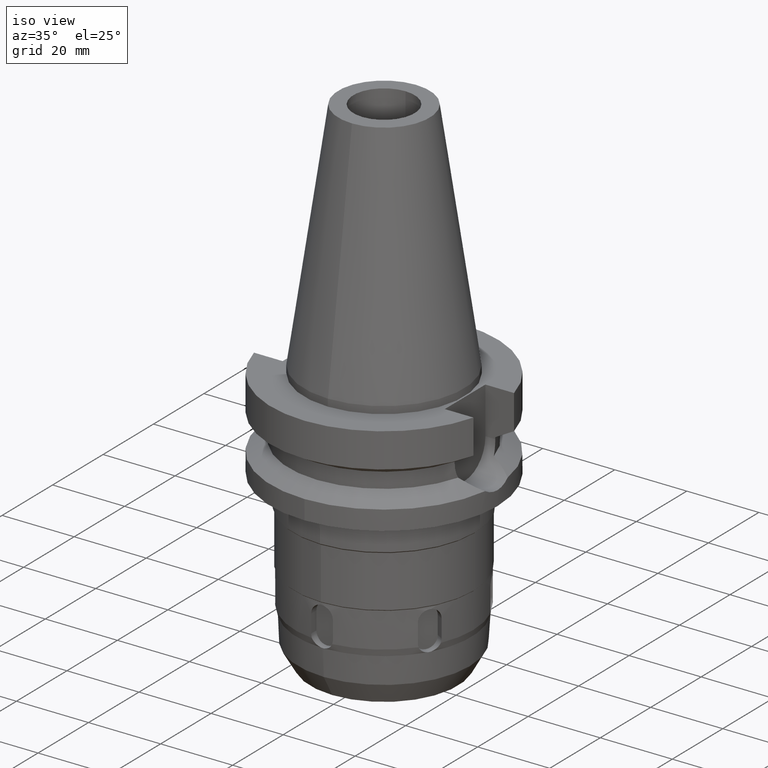
[diagram: clean part render]
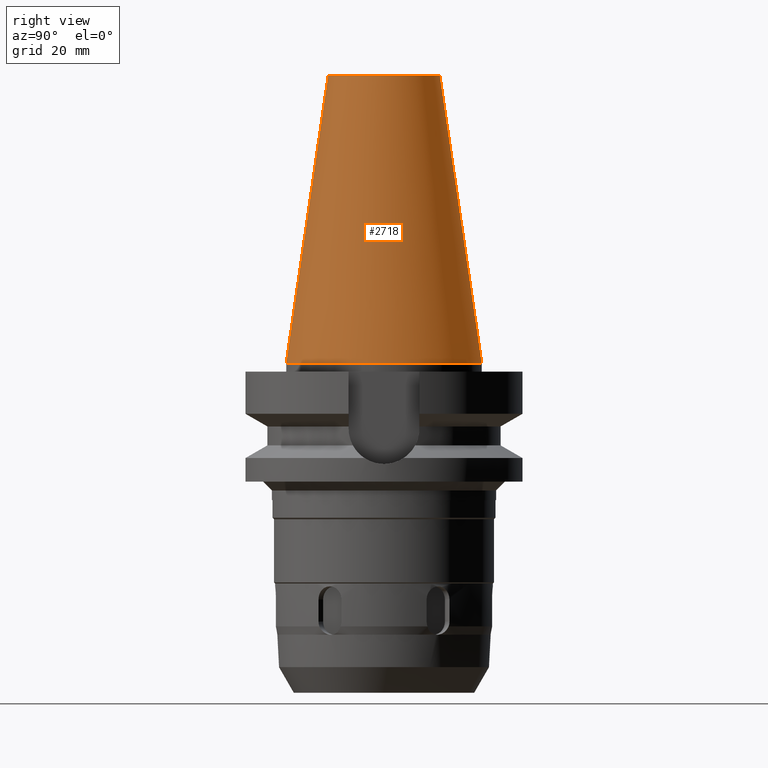
[diagram: tour spotlight — one face highlighted and labeled with its STEP entity id]
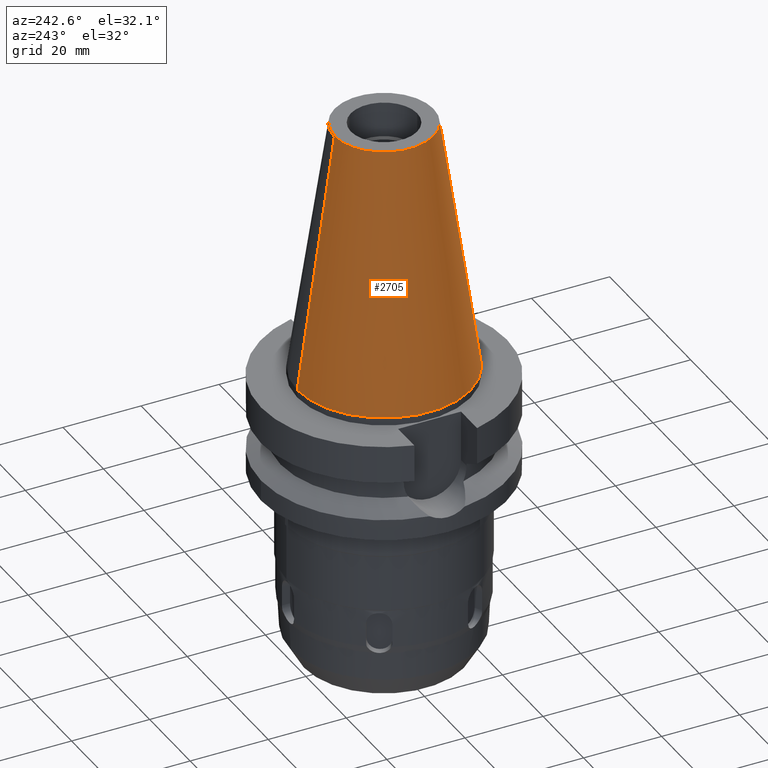
[diagram: tour spotlight — one face highlighted and labeled with its STEP entity id]
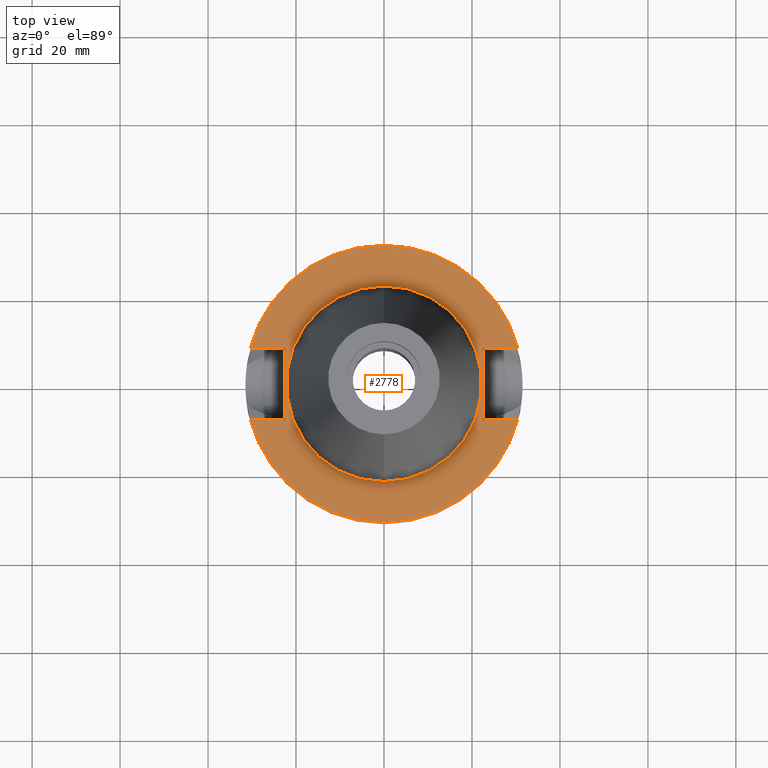
[diagram: tour spotlight — one face highlighted and labeled with its STEP entity id]
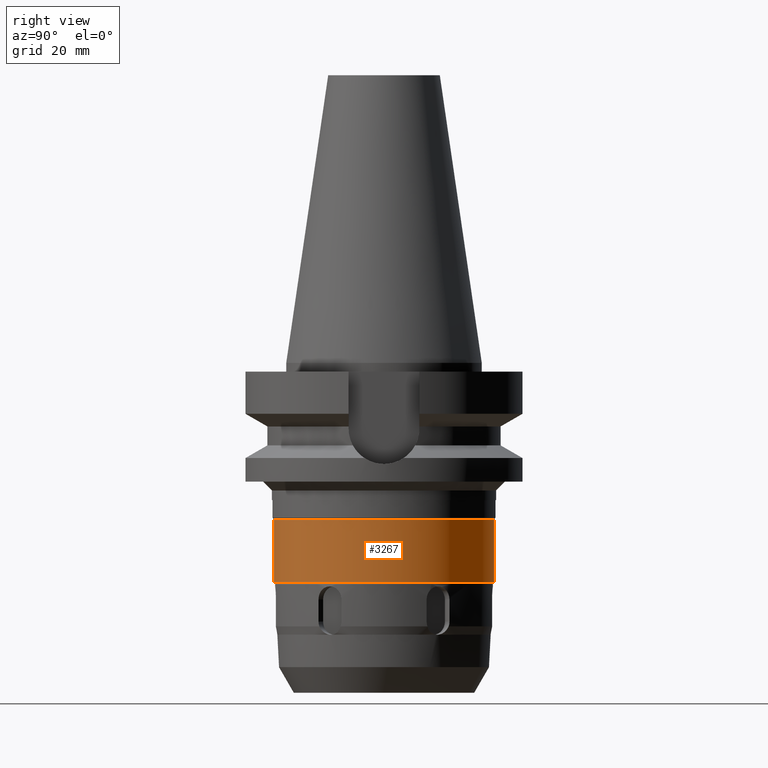
[diagram: tour spotlight — one face highlighted and labeled with its STEP entity id]
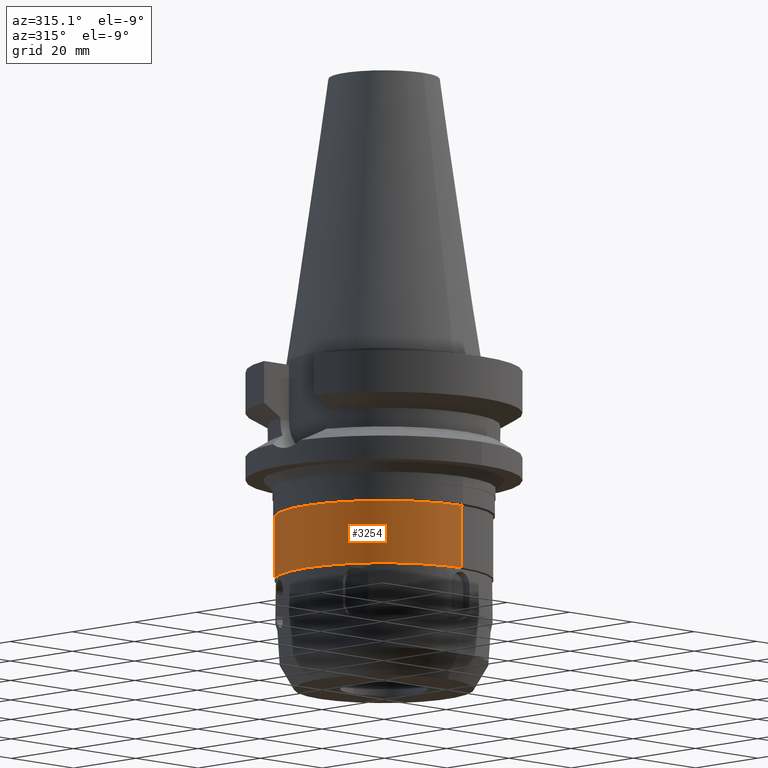
[diagram: tour spotlight — one face highlighted and labeled with its STEP entity id]
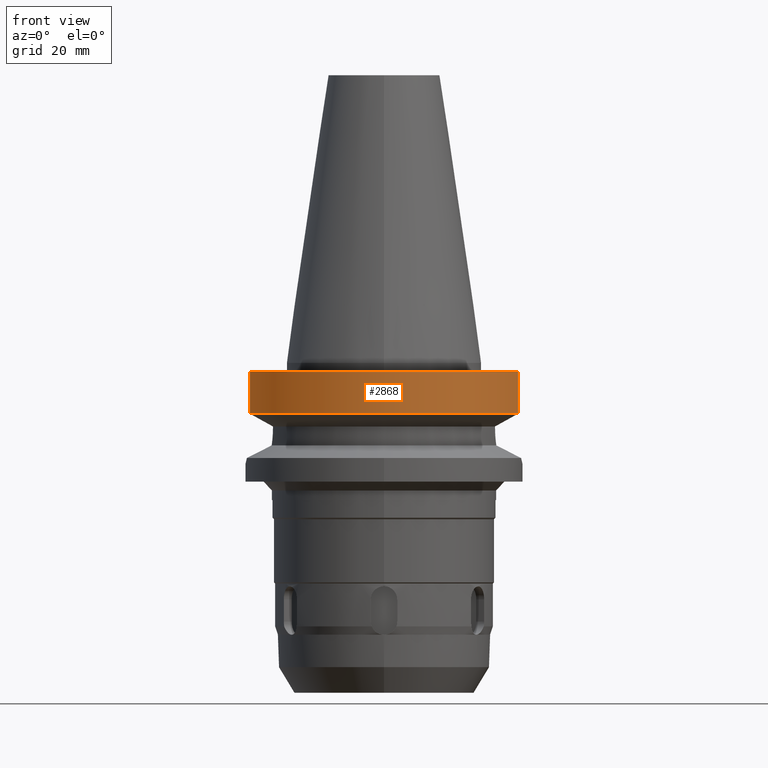
[diagram: tour spotlight — one face highlighted and labeled with its STEP entity id]
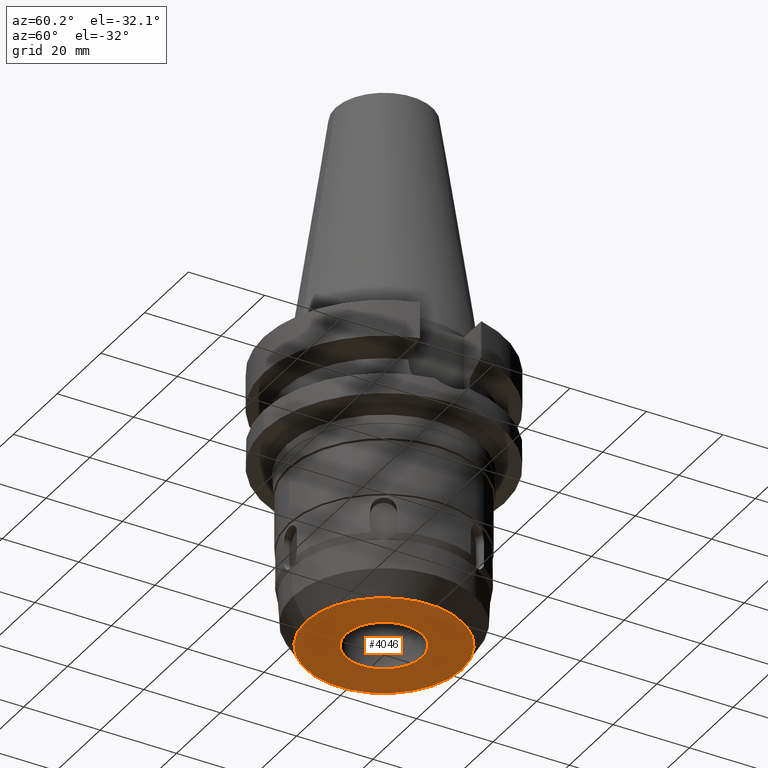
[diagram: tour spotlight — one face highlighted and labeled with its STEP entity id]
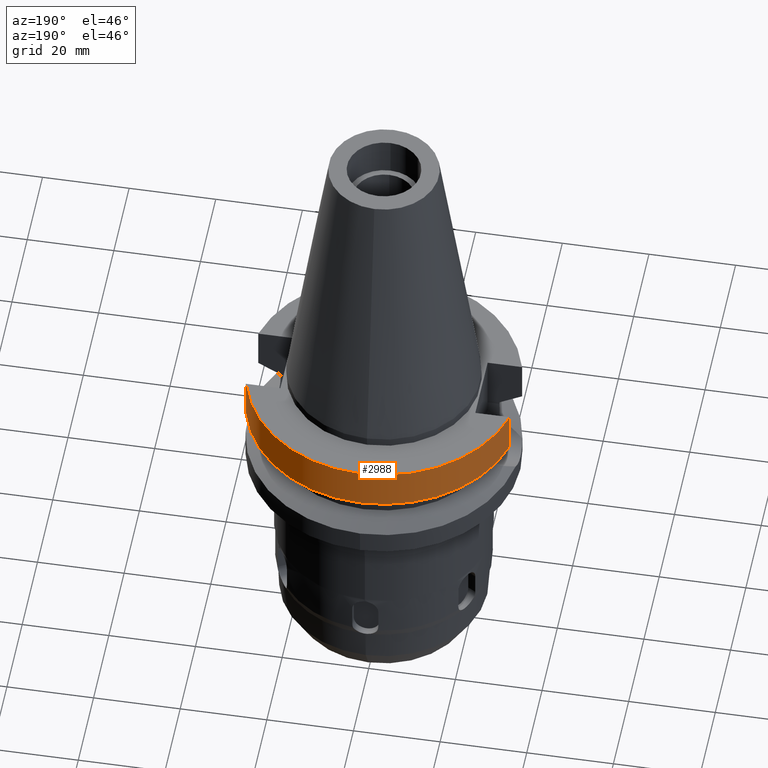
[diagram: tour spotlight — one face highlighted and labeled with its STEP entity id]
A machine part: a face-by-face anatomy tour. The part has 98 B-rep faces; the first image is the clean iso view, then the 8 largest visible faces are spotlighted one at a time (largest first), each with its STEP entity span.

Face 1 — right view, entity #2718. In plain terms, the highlighted conical surface has half-angle 8.297 deg.
Definition (entity closure, byte-faithful):
#26=CARTESIAN_POINT('',(0.E0,1.625106302469E-14,6.54E1));
#27=DIRECTION('',(0.E0,0.E0,-1.E0));
#28=DIRECTION('',(0.E0,1.E0,0.E0));
#29=AXIS2_PLACEMENT_3D('',#26,#27,#28);
#50=DIRECTION('',(0.E0,-1.443043893540E-1,-9.895333461856E-1));
#51=VECTOR('',#50,6.609175956738E1);
#52=CARTESIAN_POINT('',(0.E0,-1.268766899430E1,6.54E1));
#53=LINE('',#52,#51);
#65=DIRECTION('',(0.E0,1.443043893540E-1,-9.895333461856E-1));
#66=VECTOR('',#65,6.609175956738E1);
#67=CARTESIAN_POINT('',(0.E0,1.268766899430E1,6.54E1));
#68=LINE('',#67,#66);
#72=CARTESIAN_POINT('',(0.E0,1.625106302469E-14,2.842170943040E-14));
#73=DIRECTION('',(0.E0,0.E0,-1.E0));
#74=DIRECTION('',(0.E0,1.E0,0.E0));
#75=AXIS2_PLACEMENT_3D('',#72,#73,#74);
#2342=CARTESIAN_POINT('',(0.E0,-1.268766899430E1,6.54E1));
#2343=CARTESIAN_POINT('',(0.E0,1.268766899430E1,6.54E1));
#2344=VERTEX_POINT('',#2342);
#2345=VERTEX_POINT('',#2343);
#2625=CARTESIAN_POINT('',(0.E0,2.2225E1,6.394884621841E-14));
#2626=VERTEX_POINT('',#2625);
#2627=CARTESIAN_POINT('',(0.E0,-2.2225E1,6.394884621841E-14));
#2628=VERTEX_POINT('',#2627);
#2706=CARTESIAN_POINT('',(0.E0,1.625106302469E-14,3.27E1));
#2707=DIRECTION('',(0.E0,0.E0,-1.E0));
#2708=DIRECTION('',(0.E0,-1.E0,0.E0));
#2709=AXIS2_PLACEMENT_3D('',#2706,#2707,#2708);
#2710=CONICAL_SURFACE('',#2709,1.745633449715E1,8.297E0);
#2711=ORIENTED_EDGE('',*,*,#2696,.T.);
#2713=ORIENTED_EDGE('',*,*,#2712,.T.);
#2714=ORIENTED_EDGE('',*,*,#2699,.F.);
#2715=ORIENTED_EDGE('',*,*,#2680,.F.);
#2716=EDGE_LOOP('',(#2711,#2713,#2714,#2715));
#2717=FACE_OUTER_BOUND('',#2716,.F.);
#30=CIRCLE('',#29,1.268766899430E1);
#76=CIRCLE('',#75,2.2225E1);
#2680=EDGE_CURVE('',#2345,#2344,#30,.T.);
#2696=EDGE_CURVE('',#2345,#2626,#68,.T.);
#2699=EDGE_CURVE('',#2344,#2628,#53,.T.);
#2712=EDGE_CURVE('',#2626,#2628,#76,.T.);
#2718=ADVANCED_FACE('',(#2717),#2710,.T.);

Face 2 — auxiliary view, entity #2705. In plain terms, the highlighted conical surface has half-angle 8.297 deg.
Definition (entity closure, byte-faithful):
#17=CARTESIAN_POINT('',(0.E0,1.625106302469E-14,6.54E1));
#18=DIRECTION('',(0.E0,0.E0,-1.E0));
#19=DIRECTION('',(0.E0,-1.E0,0.E0));
#20=AXIS2_PLACEMENT_3D('',#17,#18,#19);
#50=DIRECTION('',(0.E0,-1.443043893540E-1,-9.895333461856E-1));
#51=VECTOR('',#50,6.609175956738E1);
#52=CARTESIAN_POINT('',(0.E0,-1.268766899430E1,6.54E1));
#53=LINE('',#52,#51);
#57=CARTESIAN_POINT('',(0.E0,1.625106302469E-14,2.842170943040E-14));
#58=DIRECTION('',(0.E0,0.E0,-1.E0));
#59=DIRECTION('',(0.E0,-1.E0,0.E0));
#60=AXIS2_PLACEMENT_3D('',#57,#58,#59);
#65=DIRECTION('',(0.E0,1.443043893540E-1,-9.895333461856E-1));
#66=VECTOR('',#65,6.609175956738E1);
#67=CARTESIAN_POINT('',(0.E0,1.268766899430E1,6.54E1));
#68=LINE('',#67,#66);
#2342=CARTESIAN_POINT('',(0.E0,-1.268766899430E1,6.54E1));
#2343=CARTESIAN_POINT('',(0.E0,1.268766899430E1,6.54E1));
#2344=VERTEX_POINT('',#2342);
#2345=VERTEX_POINT('',#2343);
#2625=CARTESIAN_POINT('',(0.E0,2.2225E1,6.394884621841E-14));
#2626=VERTEX_POINT('',#2625);
#2627=CARTESIAN_POINT('',(0.E0,-2.2225E1,6.394884621841E-14));
#2628=VERTEX_POINT('',#2627);
#2691=CARTESIAN_POINT('',(0.E0,1.625106302469E-14,3.27E1));
#2692=DIRECTION('',(0.E0,0.E0,-1.E0));
#2693=DIRECTION('',(0.E0,-1.E0,0.E0));
#2694=AXIS2_PLACEMENT_3D('',#2691,#2692,#2693);
#2695=CONICAL_SURFACE('',#2694,1.745633449715E1,8.297E0);
#2697=ORIENTED_EDGE('',*,*,#2696,.F.);
#2698=ORIENTED_EDGE('',*,*,#2678,.F.);
#2700=ORIENTED_EDGE('',*,*,#2699,.T.);
#2702=ORIENTED_EDGE('',*,*,#2701,.T.);
#2703=EDGE_LOOP('',(#2697,#2698,#2700,#2702));
#2704=FACE_OUTER_BOUND('',#2703,.F.);
#21=CIRCLE('',#20,1.268766899430E1);
#61=CIRCLE('',#60,2.2225E1);
#2678=EDGE_CURVE('',#2344,#2345,#21,.T.);
#2696=EDGE_CURVE('',#2345,#2626,#68,.T.);
#2699=EDGE_CURVE('',#2344,#2628,#53,.T.);
#2701=EDGE_CURVE('',#2628,#2626,#61,.T.);
#2705=ADVANCED_FACE('',(#2704),#2695,.T.);

Face 3 — top view, entity #2778. In plain terms, the highlighted planar face has unit normal (0, 0, -1).
Definition (entity closure, byte-faithful):
#94=DIRECTION('',(0.E0,1.E0,0.E0));
#95=VECTOR('',#94,1.61E1);
#96=CARTESIAN_POINT('',(-2.25E1,-8.05E0,-2.E0));
#97=LINE('',#96,#95);
#101=DIRECTION('',(-1.E0,-3.550916904668E-14,0.E0));
#102=VECTOR('',#101,7.954022722788E0);
#103=CARTESIAN_POINT('',(-2.25E1,8.05E0,-2.E0));
#104=LINE('',#103,#102);
#108=CARTESIAN_POINT('',(0.E0,2.111536011090E-14,-2.E0));
#109=DIRECTION('',(0.E0,0.E0,-1.E0));
#110=DIRECTION('',(-9.667943721520E-1,2.555555555556E-1,0.E0));
#111=AXIS2_PLACEMENT_3D('',#108,#109,#110);
#116=CARTESIAN_POINT('',(0.E0,2.111536011090E-14,-2.E0));
#117=DIRECTION('',(0.E0,0.E0,-1.E0));
#118=DIRECTION('',(0.E0,1.E0,0.E0));
#119=AXIS2_PLACEMENT_3D('',#116,#117,#118);
#124=DIRECTION('',(0.E0,-1.E0,0.E0));
#125=VECTOR('',#124,1.61E1);
#126=CARTESIAN_POINT('',(2.25E1,8.05E0,-2.E0));
#127=LINE('',#126,#125);
#131=DIRECTION('',(1.E0,3.573249715390E-14,0.E0));
#132=VECTOR('',#131,7.954022722788E0);
#133=CARTESIAN_POINT('',(2.25E1,-8.05E0,-2.E0));
#134=LINE('',#133,#132);
#138=CARTESIAN_POINT('',(0.E0,2.111536011090E-14,-2.E0));
#139=DIRECTION('',(0.E0,0.E0,-1.E0));
#140=DIRECTION('',(9.667943721520E-1,-2.555555555556E-1,0.E0));
#141=AXIS2_PLACEMENT_3D('',#138,#139,#140);
#146=CARTESIAN_POINT('',(0.E0,2.111536011090E-14,-2.E0));
#147=DIRECTION('',(0.E0,0.E0,-1.E0));
#148=DIRECTION('',(0.E0,-1.E0,0.E0));
#149=AXIS2_PLACEMENT_3D('',#146,#147,#148);
#154=CARTESIAN_POINT('',(0.E0,2.111536011090E-14,-2.E0));
#155=DIRECTION('',(0.E0,0.E0,1.E0));
#156=DIRECTION('',(0.E0,-1.E0,0.E0));
#157=AXIS2_PLACEMENT_3D('',#154,#155,#156);
#162=CARTESIAN_POINT('',(0.E0,2.111536011090E-14,-2.E0));
#163=DIRECTION('',(0.E0,0.E0,1.E0));
#164=DIRECTION('',(0.E0,1.E0,0.E0));
#165=AXIS2_PLACEMENT_3D('',#162,#163,#164);
#200=DIRECTION('',(-1.E0,3.550916904668E-14,0.E0));
#201=VECTOR('',#200,7.954022722788E0);
#202=CARTESIAN_POINT('',(-2.25E1,-8.05E0,-2.E0));
#203=LINE('',#202,#201);
#337=DIRECTION('',(1.E0,-3.506251283226E-14,0.E0));
#338=VECTOR('',#337,7.954022722788E0);
#339=CARTESIAN_POINT('',(2.25E1,8.05E0,-2.E0));
#340=LINE('',#339,#338);
#2599=CARTESIAN_POINT('',(-2.25E1,-8.05E0,-2.E0));
#2600=VERTEX_POINT('',#2599);
#2601=CARTESIAN_POINT('',(-3.045402272279E1,-8.05E0,-2.E0));
#2602=VERTEX_POINT('',#2601);
#2605=CARTESIAN_POINT('',(-2.25E1,8.05E0,-2.E0));
#2606=VERTEX_POINT('',#2605);
#2607=CARTESIAN_POINT('',(-3.045402272279E1,8.05E0,-2.E0));
#2608=VERTEX_POINT('',#2607);
#2609=CARTESIAN_POINT('',(-3.317447654708E-14,3.15E1,-2.E0));
#2610=CARTESIAN_POINT('',(3.045402272279E1,8.05E0,-2.E0));
#2611=VERTEX_POINT('',#2609);
#2612=VERTEX_POINT('',#2610);
#2613=CARTESIAN_POINT('',(2.25E1,8.05E0,-2.E0));
#2614=VERTEX_POINT('',#2613);
#2615=CARTESIAN_POINT('',(2.25E1,-8.05E0,-2.E0));
#2616=VERTEX_POINT('',#2615);
#2617=CARTESIAN_POINT('',(3.045402272279E1,-8.05E0,-2.E0));
#2618=VERTEX_POINT('',#2617);
#2619=CARTESIAN_POINT('',(3.317447654708E-14,-3.15E1,-2.E0));
#2620=VERTEX_POINT('',#2619);
#2621=CARTESIAN_POINT('',(0.E0,-2.2225E1,-2.E0));
#2622=CARTESIAN_POINT('',(0.E0,2.2225E1,-2.E0));
#2623=VERTEX_POINT('',#2621);
#2624=VERTEX_POINT('',#2622);
#2747=CARTESIAN_POINT('',(0.E0,1.200153863164E-14,-2.E0));
#2748=DIRECTION('',(0.E0,0.E0,-1.E0));
#2749=DIRECTION('',(0.E0,-1.E0,0.E0));
#2750=AXIS2_PLACEMENT_3D('',#2747,#2748,#2749);
#2751=PLANE('',#2750);
#2753=ORIENTED_EDGE('',*,*,#2752,.T.);
#2755=ORIENTED_EDGE('',*,*,#2754,.T.);
#2757=ORIENTED_EDGE('',*,*,#2756,.T.);
#2759=ORIENTED_EDGE('',*,*,#2758,.T.);
#2761=ORIENTED_EDGE('',*,*,#2760,.F.);
#2763=ORIENTED_EDGE('',*,*,#2762,.T.);
#2765=ORIENTED_EDGE('',*,*,#2764,.T.);
#2767=ORIENTED_EDGE('',*,*,#2766,.T.);
#2769=ORIENTED_EDGE('',*,*,#2768,.T.);
#2771=ORIENTED_EDGE('',*,*,#2770,.F.);
#2772=EDGE_LOOP('',(#2753,#2755,#2757,#2759,#2761,#2763,#2765,#2767,#2769,
#2771));
#2773=FACE_OUTER_BOUND('',#2772,.F.);
#2774=ORIENTED_EDGE('',*,*,#2726,.T.);
#2775=ORIENTED_EDGE('',*,*,#2742,.T.);
#2776=EDGE_LOOP('',(#2774,#2775));
#2777=FACE_BOUND('',#2776,.F.);
#112=CIRCLE('',#111,3.15E1);
#120=CIRCLE('',#119,3.15E1);
#142=CIRCLE('',#141,3.15E1);
#150=CIRCLE('',#149,3.15E1);
#158=CIRCLE('',#157,2.2225E1);
#166=CIRCLE('',#165,2.2225E1);
#2726=EDGE_CURVE('',#2623,#2624,#158,.T.);
#2742=EDGE_CURVE('',#2624,#2623,#166,.T.);
#2752=EDGE_CURVE('',#2600,#2606,#97,.T.);
#2754=EDGE_CURVE('',#2606,#2608,#104,.T.);
#2756=EDGE_CURVE('',#2608,#2611,#112,.T.);
#2758=EDGE_CURVE('',#2611,#2612,#120,.T.);
#2760=EDGE_CURVE('',#2614,#2612,#340,.T.);
#2762=EDGE_CURVE('',#2614,#2616,#127,.T.);
#2764=EDGE_CURVE('',#2616,#2618,#134,.T.);
#2766=EDGE_CURVE('',#2618,#2620,#142,.T.);
#2768=EDGE_CURVE('',#2620,#2602,#150,.T.);
#2770=EDGE_CURVE('',#2600,#2602,#203,.T.);
#2778=ADVANCED_FACE('',(#2773,#2777),#2751,.F.);

Face 4 — right view, entity #3267. In plain terms, the highlighted cylindrical surface (partial cylindrical patch) has radius 25 mm, axis along (0, 0, -1).
Definition (entity closure, byte-faithful):
#757=CARTESIAN_POINT('',(0.E0,0.E0,-3.555E1));
#758=DIRECTION('',(0.E0,0.E0,-1.E0));
#759=DIRECTION('',(0.E0,1.E0,0.E0));
#760=AXIS2_PLACEMENT_3D('',#757,#758,#759);
#796=DIRECTION('',(0.E0,0.E0,-1.E0));
#797=VECTOR('',#796,1.435E1);
#798=CARTESIAN_POINT('',(0.E0,-2.5E1,-3.555E1));
#799=LINE('',#798,#797);
#803=DIRECTION('',(0.E0,0.E0,-1.E0));
#804=VECTOR('',#803,1.435E1);
#805=CARTESIAN_POINT('',(0.E0,2.5E1,-3.555E1));
#806=LINE('',#805,#804);
#825=CARTESIAN_POINT('',(0.E0,0.E0,-4.99E1));
#826=DIRECTION('',(0.E0,0.E0,1.E0));
#827=DIRECTION('',(0.E0,-1.E0,0.E0));
#828=AXIS2_PLACEMENT_3D('',#825,#826,#827);
#2520=CARTESIAN_POINT('',(0.E0,2.5E1,-4.99E1));
#2521=VERTEX_POINT('',#2520);
#2522=CARTESIAN_POINT('',(0.E0,-2.5E1,-4.99E1));
#2523=VERTEX_POINT('',#2522);
#2524=CARTESIAN_POINT('',(0.E0,2.5E1,-3.555E1));
#2525=VERTEX_POINT('',#2524);
#2526=CARTESIAN_POINT('',(0.E0,-2.5E1,-3.555E1));
#2527=VERTEX_POINT('',#2526);
#3255=CARTESIAN_POINT('',(0.E0,2.111536011090E-14,7.242E1));
#3256=DIRECTION('',(0.E0,0.E0,-1.E0));
#3257=DIRECTION('',(0.E0,-1.E0,0.E0));
#3258=AXIS2_PLACEMENT_3D('',#3255,#3256,#3257);
#3259=CYLINDRICAL_SURFACE('',#3258,2.5E1);
#3260=ORIENTED_EDGE('',*,*,#3245,.T.);
#3262=ORIENTED_EDGE('',*,*,#3261,.F.);
#3263=ORIENTED_EDGE('',*,*,#3248,.F.);
#3264=ORIENTED_EDGE('',*,*,#3219,.F.);
#3265=EDGE_LOOP('',(#3260,#3262,#3263,#3264));
#3266=FACE_OUTER_BOUND('',#3265,.F.);
#761=CIRCLE('',#760,2.5E1);
#829=CIRCLE('',#828,2.5E1);
#3219=EDGE_CURVE('',#2525,#2527,#761,.T.);
#3245=EDGE_CURVE('',#2525,#2521,#806,.T.);
#3248=EDGE_CURVE('',#2527,#2523,#799,.T.);
#3261=EDGE_CURVE('',#2523,#2521,#829,.T.);
#3267=ADVANCED_FACE('',(#3266),#3259,.T.);

Face 5 — auxiliary view, entity #3254. In plain terms, the highlighted cylindrical surface (partial cylindrical patch) has radius 25 mm, axis along (0, 0, -1).
Definition (entity closure, byte-faithful):
#788=CARTESIAN_POINT('',(0.E0,0.E0,-3.555E1));
#789=DIRECTION('',(0.E0,0.E0,-1.E0));
#790=DIRECTION('',(0.E0,-1.E0,0.E0));
#791=AXIS2_PLACEMENT_3D('',#788,#789,#790);
#796=DIRECTION('',(0.E0,0.E0,-1.E0));
#797=VECTOR('',#796,1.435E1);
#798=CARTESIAN_POINT('',(0.E0,-2.5E1,-3.555E1));
#799=LINE('',#798,#797);
#803=DIRECTION('',(0.E0,0.E0,-1.E0));
#804=VECTOR('',#803,1.435E1);
#805=CARTESIAN_POINT('',(0.E0,2.5E1,-3.555E1));
#806=LINE('',#805,#804);
#833=CARTESIAN_POINT('',(0.E0,0.E0,-4.99E1));
#834=DIRECTION('',(0.E0,0.E0,1.E0));
#835=DIRECTION('',(0.E0,1.E0,0.E0));
#836=AXIS2_PLACEMENT_3D('',#833,#834,#835);
#2520=CARTESIAN_POINT('',(0.E0,2.5E1,-4.99E1));
#2521=VERTEX_POINT('',#2520);
#2522=CARTESIAN_POINT('',(0.E0,-2.5E1,-4.99E1));
#2523=VERTEX_POINT('',#2522);
#2524=CARTESIAN_POINT('',(0.E0,2.5E1,-3.555E1));
#2525=VERTEX_POINT('',#2524);
#2526=CARTESIAN_POINT('',(0.E0,-2.5E1,-3.555E1));
#2527=VERTEX_POINT('',#2526);
#3240=CARTESIAN_POINT('',(0.E0,2.111536011090E-14,7.242E1));
#3241=DIRECTION('',(0.E0,0.E0,-1.E0));
#3242=DIRECTION('',(0.E0,-1.E0,0.E0));
#3243=AXIS2_PLACEMENT_3D('',#3240,#3241,#3242);
#3244=CYLINDRICAL_SURFACE('',#3243,2.5E1);
#3246=ORIENTED_EDGE('',*,*,#3245,.F.);
#3247=ORIENTED_EDGE('',*,*,#3235,.F.);
#3249=ORIENTED_EDGE('',*,*,#3248,.T.);
#3251=ORIENTED_EDGE('',*,*,#3250,.F.);
#3252=EDGE_LOOP('',(#3246,#3247,#3249,#3251));
#3253=FACE_OUTER_BOUND('',#3252,.F.);
#792=CIRCLE('',#791,2.5E1);
#837=CIRCLE('',#836,2.5E1);
#3235=EDGE_CURVE('',#2527,#2525,#792,.T.);
#3245=EDGE_CURVE('',#2525,#2521,#806,.T.);
#3248=EDGE_CURVE('',#2527,#2523,#799,.T.);
#3250=EDGE_CURVE('',#2521,#2523,#837,.T.);
#3254=ADVANCED_FACE('',(#3253),#3244,.T.);

Face 6 — front view, entity #2868. In plain terms, the highlighted cylindrical surface (partial cylindrical patch) has radius 31.5 mm, axis along (0, 0, -1).
Definition (entity closure, byte-faithful):
#138=CARTESIAN_POINT('',(0.E0,2.111536011090E-14,-2.E0));
#139=DIRECTION('',(0.E0,0.E0,-1.E0));
#140=DIRECTION('',(9.667943721520E-1,-2.555555555556E-1,0.E0));
#141=AXIS2_PLACEMENT_3D('',#138,#139,#140);
#146=CARTESIAN_POINT('',(0.E0,2.111536011090E-14,-2.E0));
#147=DIRECTION('',(0.E0,0.E0,-1.E0));
#148=DIRECTION('',(0.E0,-1.E0,0.E0));
#149=AXIS2_PLACEMENT_3D('',#146,#147,#148);
#251=CARTESIAN_POINT('',(0.E0,1.065333950388E-14,-1.156550565267E1));
#252=DIRECTION('',(0.E0,0.E0,1.E0));
#253=DIRECTION('',(-9.667943721520E-1,-2.555555555555E-1,0.E0));
#254=AXIS2_PLACEMENT_3D('',#251,#252,#253);
#259=CARTESIAN_POINT('',(0.E0,1.065333950388E-14,-1.156550565267E1));
#260=DIRECTION('',(0.E0,0.E0,1.E0));
#261=DIRECTION('',(0.E0,-1.E0,0.E0));
#262=AXIS2_PLACEMENT_3D('',#259,#260,#261);
#283=DIRECTION('',(2.003365096741E-8,-7.578973472615E-8,1.E0));
#284=VECTOR('',#283,9.565512182300E0);
#285=CARTESIAN_POINT('',(-3.045402291442E1,-8.049999275032E0,
-1.156551218230E1));
#286=LINE('',#285,#284);
#290=DIRECTION('',(-1.147046578420E-7,-4.339395629113E-7,-9.999999999999E-1));
#291=VECTOR('',#290,9.565468263719E0);
#292=CARTESIAN_POINT('',(3.045402272279E1,-8.05E0,-2.E0));
#293=LINE('',#292,#291);
#2601=CARTESIAN_POINT('',(-3.045402272279E1,-8.05E0,-2.E0));
#2602=VERTEX_POINT('',#2601);
#2603=CARTESIAN_POINT('',(-3.045402291442E1,-8.049999275032E0,
-1.156551218230E1));
#2604=VERTEX_POINT('',#2603);
#2617=CARTESIAN_POINT('',(3.045402272279E1,-8.05E0,-2.E0));
#2618=VERTEX_POINT('',#2617);
#2619=CARTESIAN_POINT('',(3.317447654708E-14,-3.15E1,-2.E0));
#2620=VERTEX_POINT('',#2619);
#2630=CARTESIAN_POINT('',(0.E0,-3.15E1,-1.156550565267E1));
#2631=CARTESIAN_POINT('',(3.045402272279E1,-8.049999999999E0,
-1.156550565267E1));
#2632=VERTEX_POINT('',#2630);
#2633=VERTEX_POINT('',#2631);
#2854=CARTESIAN_POINT('',(0.E0,2.111536011090E-14,7.242E1));
#2855=DIRECTION('',(0.E0,0.E0,-1.E0));
#2856=DIRECTION('',(0.E0,-1.E0,0.E0));
#2857=AXIS2_PLACEMENT_3D('',#2854,#2855,#2856);
#2858=CYLINDRICAL_SURFACE('',#2857,3.15E1);
#2859=ORIENTED_EDGE('',*,*,#2807,.T.);
#2860=ORIENTED_EDGE('',*,*,#2768,.F.);
#2861=ORIENTED_EDGE('',*,*,#2766,.F.);
#2863=ORIENTED_EDGE('',*,*,#2862,.T.);
#2864=ORIENTED_EDGE('',*,*,#2845,.F.);
#2865=ORIENTED_EDGE('',*,*,#2843,.F.);
#2866=EDGE_LOOP('',(#2859,#2860,#2861,#2863,#2864,#2865));
#2867=FACE_OUTER_BOUND('',#2866,.F.);
#142=CIRCLE('',#141,3.15E1);
#150=CIRCLE('',#149,3.15E1);
#255=CIRCLE('',#254,3.15E1);
#263=CIRCLE('',#262,3.15E1);
#2766=EDGE_CURVE('',#2618,#2620,#142,.T.);
#2768=EDGE_CURVE('',#2620,#2602,#150,.T.);
#2807=EDGE_CURVE('',#2604,#2602,#286,.T.);
#2843=EDGE_CURVE('',#2604,#2632,#255,.T.);
#2845=EDGE_CURVE('',#2632,#2633,#263,.T.);
#2862=EDGE_CURVE('',#2618,#2633,#293,.T.);
#2868=ADVANCED_FACE('',(#2867),#2858,.T.);

Face 7 — auxiliary view, entity #4046. In plain terms, the highlighted planar face has unit normal (0, 0, -1).
Definition (entity closure, byte-faithful):
#2020=CARTESIAN_POINT('',(0.E0,0.E0,-7.5E1));
#2021=DIRECTION('',(0.E0,0.E0,1.E0));
#2022=DIRECTION('',(0.E0,-1.E0,0.E0));
#2023=AXIS2_PLACEMENT_3D('',#2020,#2021,#2022);
#2028=CARTESIAN_POINT('',(0.E0,0.E0,-7.5E1));
#2029=DIRECTION('',(0.E0,0.E0,1.E0));
#2030=DIRECTION('',(0.E0,1.E0,0.E0));
#2031=AXIS2_PLACEMENT_3D('',#2028,#2029,#2030);
#2036=CARTESIAN_POINT('',(0.E0,2.111536011090E-14,-7.5E1));
#2037=DIRECTION('',(0.E0,0.E0,-1.E0));
#2038=DIRECTION('',(0.E0,-1.E0,0.E0));
#2039=AXIS2_PLACEMENT_3D('',#2036,#2037,#2038);
#2044=CARTESIAN_POINT('',(0.E0,2.111536011090E-14,-7.5E1));
#2045=DIRECTION('',(0.E0,0.E0,-1.E0));
#2046=DIRECTION('',(0.E0,1.E0,0.E0));
#2047=AXIS2_PLACEMENT_3D('',#2044,#2045,#2046);
#2390=CARTESIAN_POINT('',(0.E0,1.E1,-7.5E1));
#2391=VERTEX_POINT('',#2390);
#2392=CARTESIAN_POINT('',(0.E0,-1.E1,-7.5E1));
#2393=VERTEX_POINT('',#2392);
#2394=CARTESIAN_POINT('',(0.E0,-2.05E1,-7.5E1));
#2395=CARTESIAN_POINT('',(0.E0,2.05E1,-7.5E1));
#2396=VERTEX_POINT('',#2394);
#2397=VERTEX_POINT('',#2395);
#4031=CARTESIAN_POINT('',(0.E0,0.E0,-7.5E1));
#4032=DIRECTION('',(0.E0,0.E0,-1.E0));
#4033=DIRECTION('',(0.E0,-1.E0,0.E0));
#4034=AXIS2_PLACEMENT_3D('',#4031,#4032,#4033);
#4035=PLANE('',#4034);
#4036=ORIENTED_EDGE('',*,*,#4010,.T.);
#4037=ORIENTED_EDGE('',*,*,#4026,.T.);
#4038=EDGE_LOOP('',(#4036,#4037));
#4039=FACE_OUTER_BOUND('',#4038,.F.);
#4041=ORIENTED_EDGE('',*,*,#4040,.T.);
#4043=ORIENTED_EDGE('',*,*,#4042,.T.);
#4044=EDGE_LOOP('',(#4041,#4043));
#4045=FACE_BOUND('',#4044,.F.);
#2024=CIRCLE('',#2023,2.05E1);
#2032=CIRCLE('',#2031,2.05E1);
#2040=CIRCLE('',#2039,1.E1);
#2048=CIRCLE('',#2047,1.E1);
#4010=EDGE_CURVE('',#2396,#2397,#2024,.T.);
#4026=EDGE_CURVE('',#2397,#2396,#2032,.T.);
#4040=EDGE_CURVE('',#2393,#2391,#2040,.T.);
#4042=EDGE_CURVE('',#2391,#2393,#2048,.T.);
#4046=ADVANCED_FACE('',(#4039,#4045),#4035,.T.);

Face 8 — auxiliary view, entity #2988. In plain terms, the highlighted cylindrical surface (partial cylindrical patch) has radius 31.5 mm, axis along (0, 0, -1).
Definition (entity closure, byte-faithful):
#108=CARTESIAN_POINT('',(0.E0,2.111536011090E-14,-2.E0));
#109=DIRECTION('',(0.E0,0.E0,-1.E0));
#110=DIRECTION('',(-9.667943721520E-1,2.555555555556E-1,0.E0));
#111=AXIS2_PLACEMENT_3D('',#108,#109,#110);
#116=CARTESIAN_POINT('',(0.E0,2.111536011090E-14,-2.E0));
#117=DIRECTION('',(0.E0,0.E0,-1.E0));
#118=DIRECTION('',(0.E0,1.E0,0.E0));
#119=AXIS2_PLACEMENT_3D('',#116,#117,#118);
#344=CARTESIAN_POINT('',(3.045402291450E1,8.049999274731E0,-1.156551218501E1));
#393=CARTESIAN_POINT('',(-3.045402162608E1,8.050004148946E0,-1.156546828073E1));
#414=CARTESIAN_POINT('',(0.E0,1.065333950388E-14,-1.156550565267E1));
#415=DIRECTION('',(0.E0,0.E0,1.E0));
#416=DIRECTION('',(9.667943721520E-1,2.555555555555E-1,0.E0));
#417=AXIS2_PLACEMENT_3D('',#414,#415,#416);
#422=CARTESIAN_POINT('',(0.E0,1.065333950388E-14,-1.156550565267E1));
#423=DIRECTION('',(0.E0,0.E0,1.E0));
#424=DIRECTION('',(0.E0,1.E0,0.E0));
#425=AXIS2_PLACEMENT_3D('',#422,#423,#424);
#430=DIRECTION('',(1.146524603738E-7,4.337420973835E-7,-9.999999999999E-1));
#431=VECTOR('',#430,9.565468280732E0);
#432=CARTESIAN_POINT('',(-3.045402272279E1,8.05E0,-2.E0));
#433=LINE('',#432,#431);
#437=DIRECTION('',(-2.004196717214E-8,7.582119821450E-8,1.E0));
#438=VECTOR('',#437,9.565512185011E0);
#439=CARTESIAN_POINT('',(3.045402291450E1,8.049999274731E0,-1.156551218501E1));
#440=LINE('',#439,#438);
#2607=CARTESIAN_POINT('',(-3.045402272279E1,8.05E0,-2.E0));
#2608=VERTEX_POINT('',#2607);
#2609=CARTESIAN_POINT('',(-3.317447654708E-14,3.15E1,-2.E0));
#2610=CARTESIAN_POINT('',(3.045402272279E1,8.05E0,-2.E0));
#2611=VERTEX_POINT('',#2609);
#2612=VERTEX_POINT('',#2610);
#2629=VERTEX_POINT('',#393);
#2634=VERTEX_POINT('',#344);
#2635=CARTESIAN_POINT('',(0.E0,3.15E1,-1.156550565267E1));
#2636=VERTEX_POINT('',#2635);
#2975=CARTESIAN_POINT('',(0.E0,2.111536011090E-14,7.242E1));
#2976=DIRECTION('',(0.E0,0.E0,-1.E0));
#2977=DIRECTION('',(0.E0,-1.E0,0.E0));
#2978=AXIS2_PLACEMENT_3D('',#2975,#2976,#2977);
#2979=CYLINDRICAL_SURFACE('',#2978,3.15E1);
#2980=ORIENTED_EDGE('',*,*,#2950,.T.);
#2981=ORIENTED_EDGE('',*,*,#2970,.F.);
#2982=ORIENTED_EDGE('',*,*,#2968,.F.);
#2983=ORIENTED_EDGE('',*,*,#2912,.T.);
#2984=ORIENTED_EDGE('',*,*,#2758,.F.);
#2985=ORIENTED_EDGE('',*,*,#2756,.F.);
#2986=EDGE_LOOP('',(#2980,#2981,#2982,#2983,#2984,#2985));
#2987=FACE_OUTER_BOUND('',#2986,.F.);
#112=CIRCLE('',#111,3.15E1);
#120=CIRCLE('',#119,3.15E1);
#418=CIRCLE('',#417,3.15E1);
#426=CIRCLE('',#425,3.15E1);
#2756=EDGE_CURVE('',#2608,#2611,#112,.T.);
#2758=EDGE_CURVE('',#2611,#2612,#120,.T.);
#2912=EDGE_CURVE('',#2634,#2612,#440,.T.);
#2950=EDGE_CURVE('',#2608,#2629,#433,.T.);
#2968=EDGE_CURVE('',#2634,#2636,#418,.T.);
#2970=EDGE_CURVE('',#2636,#2629,#426,.T.);
#2988=ADVANCED_FACE('',(#2987),#2979,.T.);